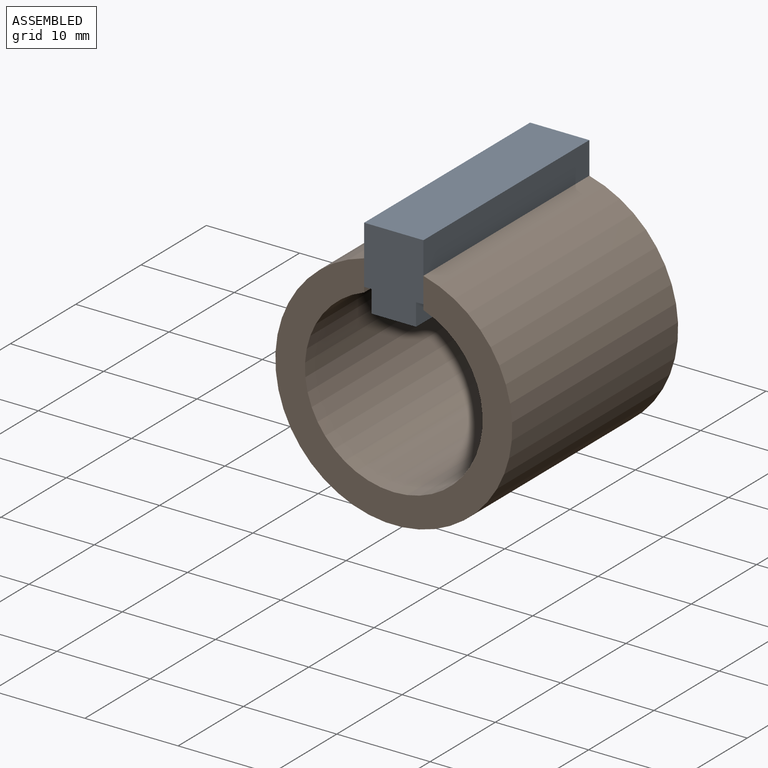
[diagram: assembled view]
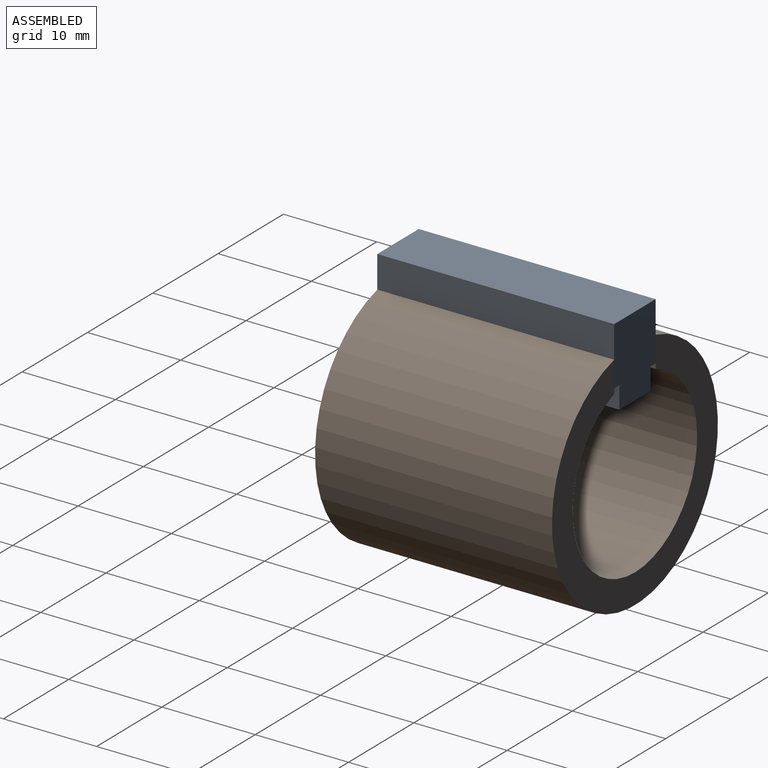
[diagram: assembled view, second angle]
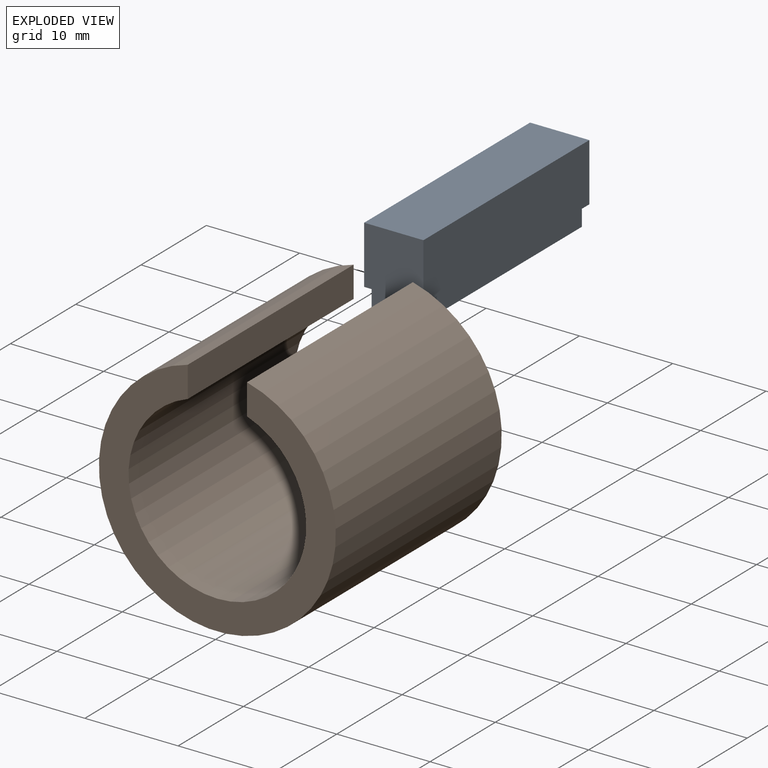
[diagram: exploded view]
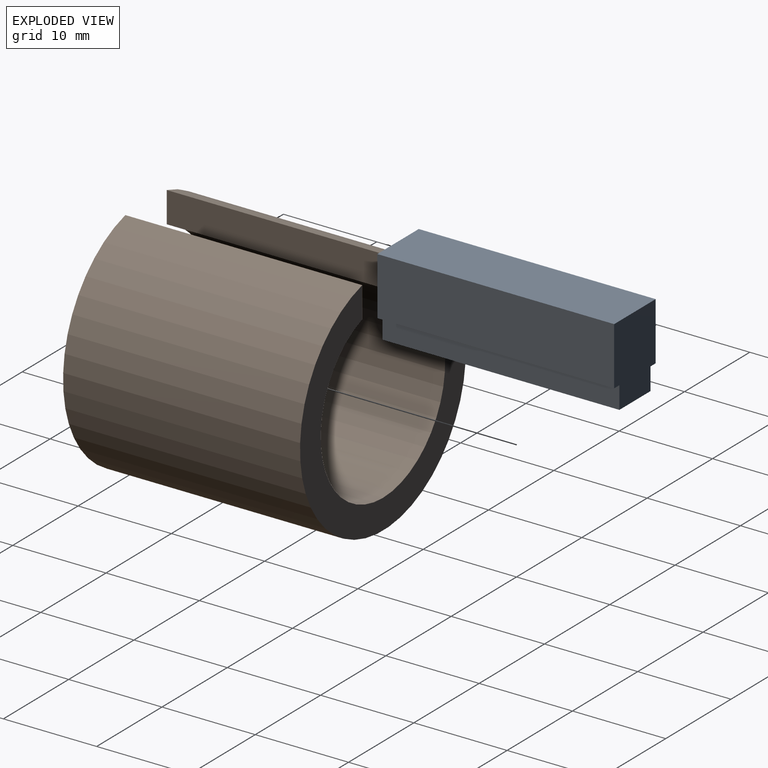
[diagram: exploded view, second angle]
ASSEMBLY  parts=2 mates=2
PART A: 10 faces, bbox 6.4x25.4x8.6 mm
  f0: plane 25.4x6.22mm, normal (-1,0,0), area 158mm2, adj f1,f7,f8,f9
  f1: plane 25.4x0.79mm, normal (0,0,-1), area 20.2mm2, adj f0,f2,f8,f9
  f2: plane 25.4x2.39mm, normal (-1,0,0), area 60.7mm2, adj f1,f3,f8,f9
  f3: plane 25.4x4.76mm, normal (0,0,-1), area 121mm2, adj f2,f4,f8,f9
  f4: plane 25.4x2.39mm, normal (1,0,0), area 60.7mm2, adj f3,f5,f8,f9
  f5: plane 25.4x0.79mm, normal (0,0,-1), area 20.2mm2, adj f4,f6,f8,f9
  f6: plane 25.4x6.22mm, normal (1,0,0), area 158mm2, adj f5,f7,f8,f9
  f7: plane 25.4x6.35mm, normal (0,0,1), area 161.3mm2, adj f0,f6,f8,f9
  f8: plane 8.61x6.35mm, normal (0,-1,0), area 50.9mm2, adj f0,f1,f2,f3,f4,f5,f6,f7
  f9: plane 8.61x6.35mm, normal (0,1,0), area 50.9mm2, adj f0,f1,f2,f3,f4,f5,f6,f7
PART B: 6 faces, bbox 25.4x25.4x25 mm
  f0: plane 25.4x3.32mm, normal (1,0,0), area 84.2mm2, adj f1,f3,f4,f5
  f1: cylinder r=12.7mm len=25.4mm, axis (0,1,0), area 1863.8mm2, adj f0,f2,f4,f5
  f2: plane 25.4x3.32mm, normal (-1,0,0), area 84.2mm2, adj f1,f3,f4,f5
  f3: cylinder r=9.53mm len=25.4mm, axis (0,1,0), area 1355.7mm2, adj f0,f2,f4,f5
  f4: plane 25.4x25mm, normal (0,-1,0), area 201.2mm2, adj f0,f1,f2,f3
  f5: plane 25.4x25mm, normal (0,1,0), area 201.2mm2, adj f0,f1,f2,f3
PLACE A t=(0,0,7.14)mm
PLACE B at identity fixed
MATE planar A.f8 <-> B.f4  axis (0,-1,0) through (0,-12.7,11.67)mm
MATE planar B.f2 <-> A.f6  axis (-1,0,0) through (3.17,0,8.98)mm
